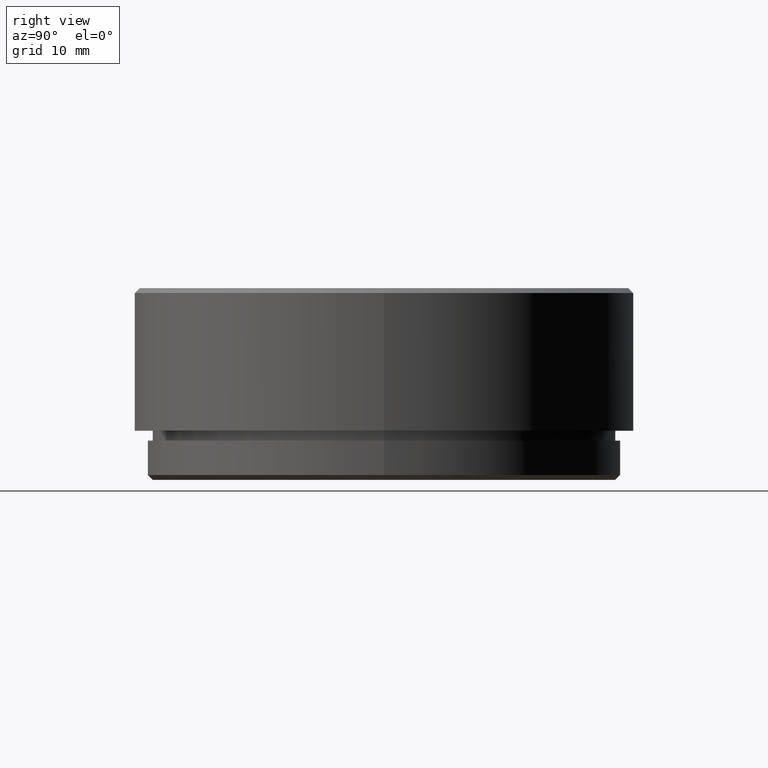
[diagram: clean part render]
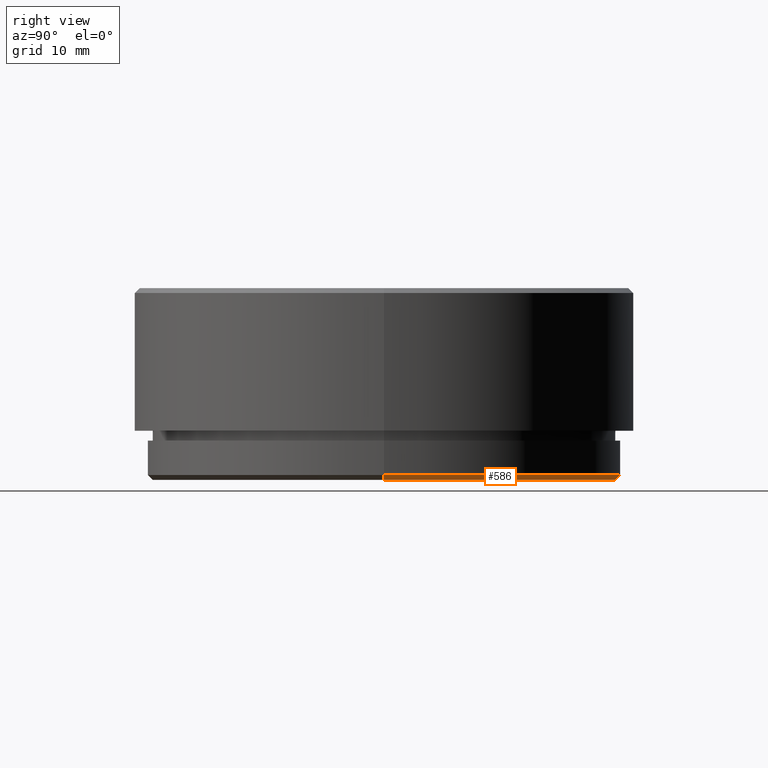
[diagram: same view with one face highlighted and labeled with its STEP entity id]
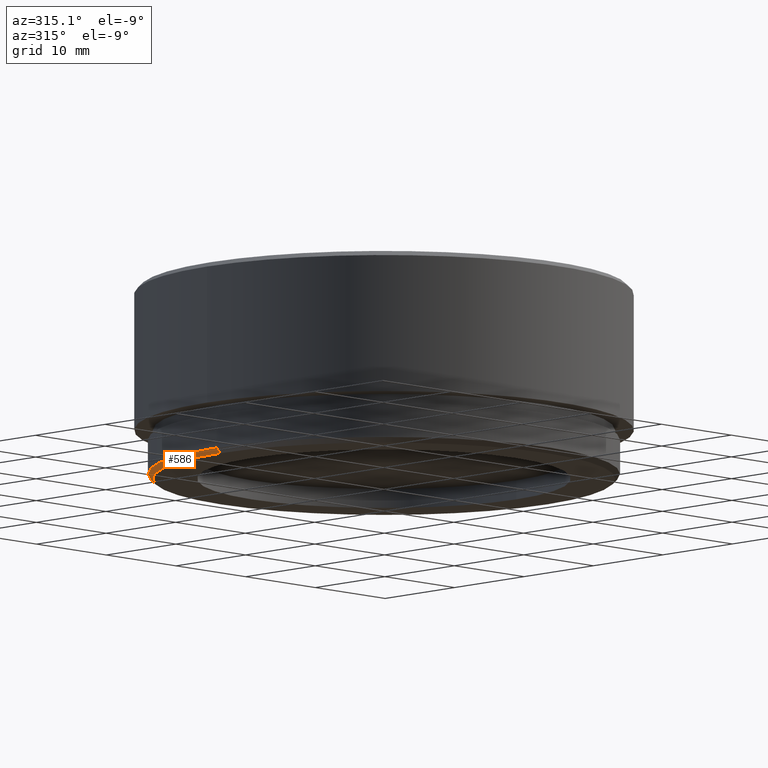
[diagram: same view with one face highlighted and labeled with its STEP entity id]
A machine part, right view. The second image highlights one B-rep face of the part: STEP entity #586.
A second angle (auxiliary view) of the same face is appended — the face is thin or edge-on in the first view.
In plain terms, the highlighted conical surface has half-angle 45 deg.
Its self-contained STEP definition (entity closure, byte-faithful):
#45 = AXIS2_PLACEMENT_3D ( 'NONE', #95, #1271, #987 ) ;
#95 = CARTESIAN_POINT ( 'NONE',  ( 0.000000000000000000, 0.000000000000000000, 0.4999999999999935052 ) ) ;
#130 = VERTEX_POINT ( 'NONE', #1767 ) ;
#161 = DIRECTION ( 'NONE',  ( 0.7071067811865451302, 0.000000000000000000, 0.7071067811865500152 ) ) ;
#356 = DIRECTION ( 'NONE',  ( 0.000000000000000000, 0.000000000000000000, 1.000000000000000000 ) ) ;
#359 = DIRECTION ( 'NONE',  ( -0.7071067811865451302, 8.659560562354904508E-17, 0.7071067811865500152 ) ) ;
#453 = ORIENTED_EDGE ( 'NONE', *, *, #1703, .F. ) ;
#454 = EDGE_LOOP ( 'NONE', ( #1415, #1618, #1905, #453 ) ) ;
#456 = LINE ( 'NONE', #710, #1043 ) ;
#479 = FACE_OUTER_BOUND ( 'NONE', #454, .T. ) ;
#509 = VERTEX_POINT ( 'NONE', #746 ) ;
#586 = ADVANCED_FACE ( 'NONE', ( #479 ), #957, .T. ) ;
#682 = CIRCLE ( 'NONE', #45, 24.00000000000000355 ) ;
#710 = CARTESIAN_POINT ( 'NONE',  ( 23.50000000000001421, 0.000000000000000000, 0.000000000000000000 ) ) ;
#731 = CARTESIAN_POINT ( 'NONE',  ( 0.000000000000000000, 0.000000000000000000, 0.000000000000000000 ) ) ;
#746 = CARTESIAN_POINT ( 'NONE',  ( -24.00000000000000355, 0.000000000000000000, 0.4999999999999935052 ) ) ;
#752 = CARTESIAN_POINT ( 'NONE',  ( -23.50000000000001421, 2.877919977996281898E-15, 0.000000000000000000 ) ) ;
#870 = EDGE_CURVE ( 'NONE', #1659, #509, #682, .T. ) ;
#957 = CONICAL_SURFACE ( 'NONE', #1555, 23.50000000000001421, 0.7853981633974447263 ) ;
#987 = DIRECTION ( 'NONE',  ( 1.000000000000000000, 0.000000000000000000, 0.000000000000000000 ) ) ;
#1005 = CIRCLE ( 'NONE', #1785, 23.50000000000001421 ) ;
#1023 = DIRECTION ( 'NONE',  ( 1.000000000000000000, 0.000000000000000000, 0.000000000000000000 ) ) ;
#1043 = VECTOR ( 'NONE', #161, 1000.000000000000114 ) ;
#1077 = CARTESIAN_POINT ( 'NONE',  ( 0.000000000000000000, 0.000000000000000000, 0.000000000000000000 ) ) ;
#1094 = EDGE_CURVE ( 'NONE', #1655, #130, #1005, .T. ) ;
#1271 = DIRECTION ( 'NONE',  ( 0.000000000000000000, 0.000000000000000000, 1.000000000000000000 ) ) ;
#1275 = EDGE_CURVE ( 'NONE', #1655, #509, #1549, .T. ) ;
#1379 = DIRECTION ( 'NONE',  ( 1.000000000000000000, 0.000000000000000000, 0.000000000000000000 ) ) ;
#1415 = ORIENTED_EDGE ( 'NONE', *, *, #1094, .F. ) ;
#1417 = CARTESIAN_POINT ( 'NONE',  ( -23.50000000000001421, 2.908536147974965291E-15, 0.000000000000000000 ) ) ;
#1549 = LINE ( 'NONE', #752, #1680 ) ;
#1555 = AXIS2_PLACEMENT_3D ( 'NONE', #1077, #356, #1379 ) ;
#1587 = CARTESIAN_POINT ( 'NONE',  ( 24.00000000000000355, 2.939152317953648289E-15, 0.4999999999999935052 ) ) ;
#1618 = ORIENTED_EDGE ( 'NONE', *, *, #1275, .T. ) ;
#1655 = VERTEX_POINT ( 'NONE', #1417 ) ;
#1659 = VERTEX_POINT ( 'NONE', #1587 ) ;
#1680 = VECTOR ( 'NONE', #359, 1000.000000000000114 ) ;
#1703 = EDGE_CURVE ( 'NONE', #130, #1659, #456, .T. ) ;
#1762 = DIRECTION ( 'NONE',  ( -0.000000000000000000, -0.000000000000000000, -1.000000000000000000 ) ) ;
#1767 = CARTESIAN_POINT ( 'NONE',  ( 23.50000000000001421, 0.000000000000000000, 0.000000000000000000 ) ) ;
#1785 = AXIS2_PLACEMENT_3D ( 'NONE', #731, #1762, #1023 ) ;
#1905 = ORIENTED_EDGE ( 'NONE', *, *, #870, .F. ) ;